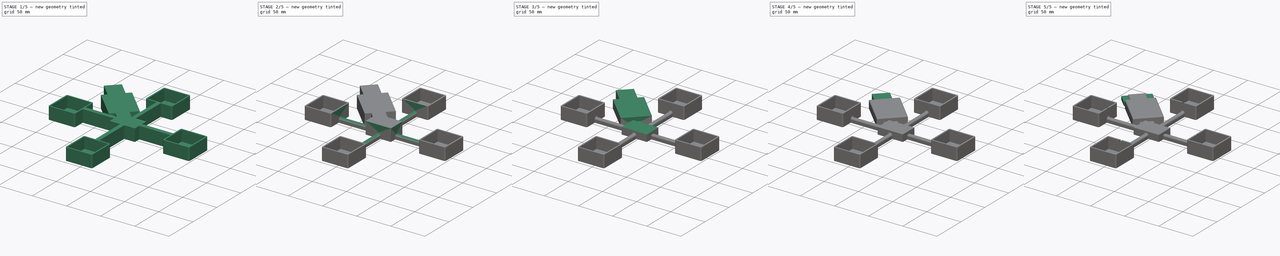
[diagram: build sequence overview — one tinted view per stage of 5, left to right]
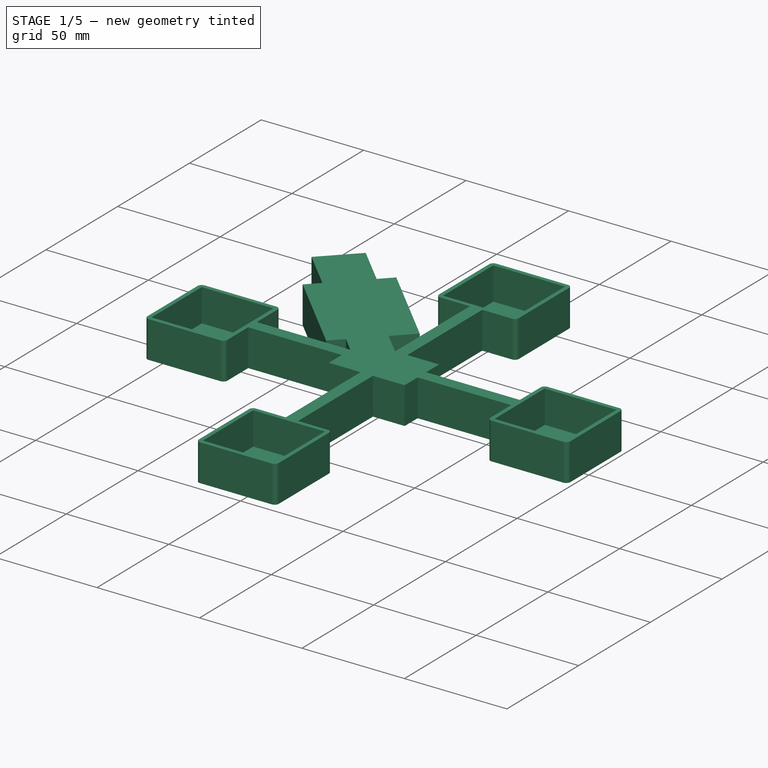
[diagram: stage 1 of 5 — iso view after this stage's code; geometry added in this stage tinted green]
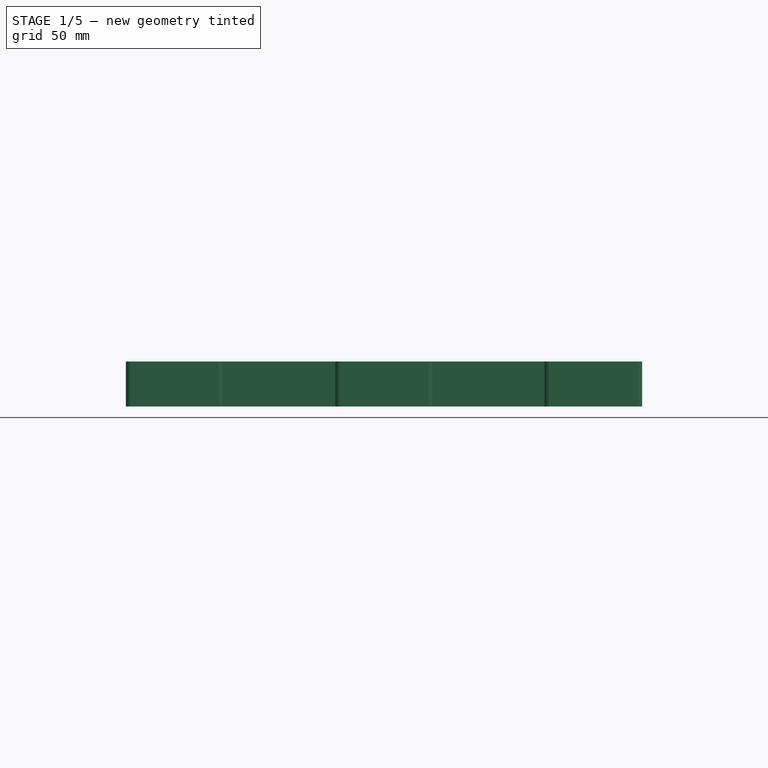
[diagram: stage 1 of 5 — front view after this stage's code; geometry added in this stage tinted green]
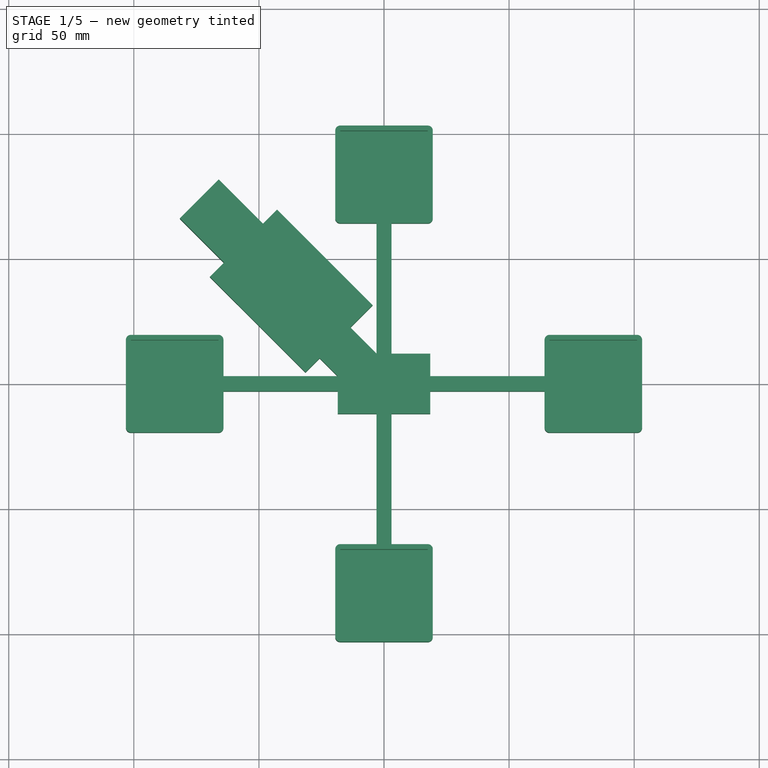
[diagram: stage 1 of 5 — top view after this stage's code; geometry added in this stage tinted green]
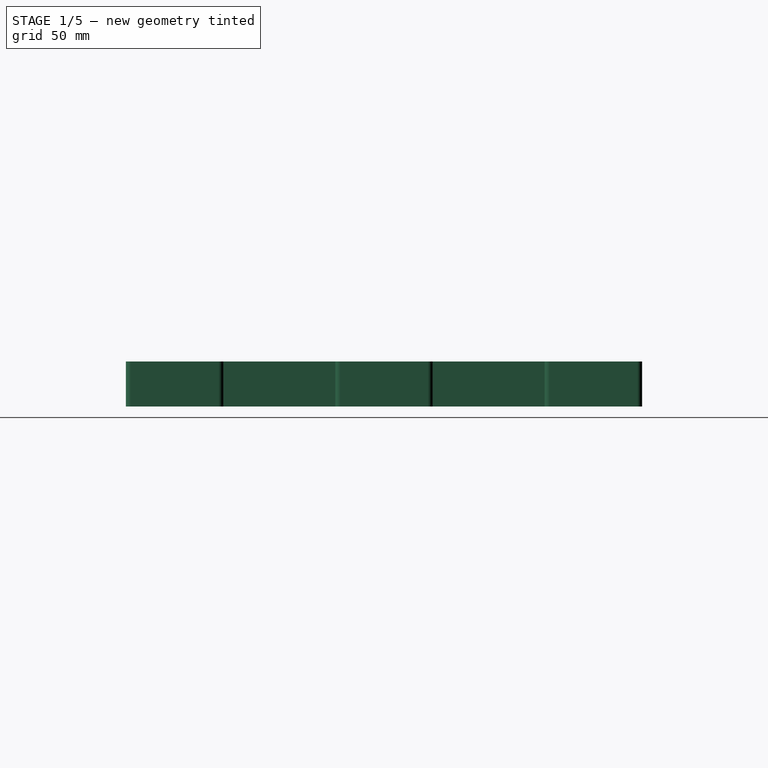
[diagram: stage 1 of 5 — right view after this stage's code; geometry added in this stage tinted green]
FCSTD DOCUMENT  (FreeCAD 1.0R39319 (Git))
Label: tap_tracker_base
License: All rights reserved
LicenseURL: https://en.wikipedia.org/wiki/All_rights_reserved
objects: Sketcher::SketchObject×17, PartDesign::Pocket×13, PartDesign::Fillet×11, PartDesign::Pad×3, PartDesign::Body×1
note: 116 computed .brp shape members not serialized (recipe doc carries the construction recipe); baked Part::Feature solids carry a one-line shape summary decoded from their .brp

FEATURE [Sketcher::SketchObject] Sketch
  ArcFitTolerance = 1e-06
  AttachmentSupport = -> [XY_Plane]
  FullyConstrained = true
  MakeInternals = false
  MapMode = 5
  sketch-geometry (47):
    g0: Circle [constr] CenterX=0 CenterY=0 CenterZ=0 NormalX=0 NormalY=0 NormalZ=1 AngleXU=0 Radius=105
    g1: LineSegment StartX=-103.173 StartY=19.5 StartZ=0 EndX=-103.173 EndY=-19.5 EndZ=0
    g2: LineSegment StartX=-103.173 StartY=-19.5 StartZ=0 EndX=-64.1734 EndY=-19.5 EndZ=0
    g3: LineSegment StartX=-64.1734 StartY=-19.5 StartZ=0 EndX=-64.1734 EndY=-3 EndZ=0
    g4: LineSegment StartX=-64.1734 StartY=19.5 StartZ=0 EndX=-103.173 EndY=19.5 EndZ=0
    g5: LineSegment StartX=64.1734 StartY=19.5 StartZ=0 EndX=64.1734 EndY=3 EndZ=0
    g6: LineSegment StartX=64.1734 StartY=-19.5 StartZ=0 EndX=103.173 EndY=-19.5 EndZ=0
    g7: LineSegment StartX=103.173 StartY=-19.5 StartZ=0 EndX=103.173 EndY=19.5 EndZ=0
    g8: LineSegment StartX=103.173 StartY=19.5 StartZ=0 EndX=64.1734 EndY=19.5 EndZ=0
    g9: LineSegment StartX=-19.5 StartY=64.1734 StartZ=0 EndX=-3 EndY=64.1734 EndZ=0
    g10: LineSegment StartX=19.5 StartY=64.1734 StartZ=0 EndX=19.5 EndY=103.173 EndZ=0
    g11: LineSegment StartX=19.5 StartY=103.173 StartZ=0 EndX=-19.5 EndY=103.173 EndZ=0
    g12: LineSegment StartX=-19.5 StartY=103.173 StartZ=0 EndX=-19.5 EndY=64.1734 EndZ=0
    g13: LineSegment StartX=-19.5 StartY=-64.1734 StartZ=0 EndX=-19.5 EndY=-103.173 EndZ=0
    g14: LineSegment StartX=-19.5 StartY=-103.173 StartZ=0 EndX=19.5 EndY=-103.173 EndZ=0
    g15: LineSegment StartX=19.5 StartY=-103.173 StartZ=0 EndX=19.5 EndY=-64.1734 EndZ=0
    g16: LineSegment StartX=19.5 StartY=-64.1734 StartZ=0 EndX=3 EndY=-64.1734 EndZ=0
    g17: LineSegment StartX=-18.5 StartY=-12 StartZ=0 EndX=-3 EndY=-12 EndZ=0
    g18: LineSegment StartX=18.5 StartY=-12 StartZ=0 EndX=18.5 EndY=-3 EndZ=0
    g19: LineSegment StartX=18.5 StartY=12 StartZ=0 EndX=3 EndY=12 EndZ=0
    g20: LineSegment StartX=-66.0595 StartY=81.6158 StartZ=0 EndX=-48.3818 EndY=63.9382 EndZ=0
    g21: LineSegment StartX=-63.9382 StartY=48.3818 StartZ=0 EndX=-81.6158 EndY=66.0595 EndZ=0
    g22: LineSegment StartX=-81.6158 StartY=66.0595 StartZ=0 EndX=-66.0595 EndY=81.6158 EndZ=0
    g23: LineSegment [constr] StartX=-105 StartY=0 StartZ=0 EndX=-5.4e-15 EndY=105 EndZ=0
    g24: LineSegment StartX=-64.1734 StartY=3 StartZ=0 EndX=-18.5 EndY=3 EndZ=0
    g25: LineSegment StartX=-64.1734 StartY=-3 StartZ=0 EndX=-18.5 EndY=-3 EndZ=0
    g26: LineSegment StartX=-18.5 StartY=-3 StartZ=0 EndX=-18.5 EndY=-12 EndZ=0
    g27: LineSegment StartX=-64.1734 StartY=3 StartZ=0 EndX=-64.1734 EndY=19.5 EndZ=0
    g28: LineSegment StartX=18.5 StartY=3 StartZ=0 EndX=64.1734 EndY=3 EndZ=0
    g29: LineSegment StartX=18.5 StartY=-3 StartZ=0 EndX=64.1734 EndY=-3 EndZ=0
    g30: LineSegment StartX=-3 StartY=64.1734 StartZ=0 EndX=-3 EndY=12 EndZ=0
    g31: LineSegment StartX=3 StartY=64.1734 StartZ=0 EndX=3 EndY=12 EndZ=0
    g32: LineSegment StartX=3 StartY=-12 StartZ=0 EndX=3 EndY=-64.1734 EndZ=0
    g33: LineSegment StartX=-3 StartY=-12 StartZ=0 EndX=-3 EndY=-64.1734 EndZ=0
    g34: LineSegment StartX=3 StartY=64.1734 StartZ=0 EndX=19.5 EndY=64.1734 EndZ=0
    g35: LineSegment StartX=3 StartY=-12 StartZ=0 EndX=18.5 EndY=-12 EndZ=0
    g36: LineSegment StartX=-3 StartY=-64.1734 StartZ=0 EndX=-19.5 EndY=-64.1734 EndZ=0
    g37: LineSegment StartX=18.5 StartY=3 StartZ=0 EndX=18.5 EndY=12 EndZ=0
    g38: LineSegment StartX=64.1734 StartY=-3 StartZ=0 EndX=64.1734 EndY=-19.5 EndZ=0
    g39: LineSegment StartX=-48.3818 StartY=63.9382 StartZ=0 EndX=-42.725 EndY=69.595 EndZ=0
    g40: LineSegment StartX=-42.725 StartY=69.595 StartZ=0 EndX=-4.5412 EndY=31.4113 EndZ=0
    g41: LineSegment StartX=-4.5412 StartY=31.4113 StartZ=0 EndX=-13.4762 EndY=22.4762 EndZ=0
    g42: LineSegment StartX=-31.4113 StartY=4.5412 StartZ=0 EndX=-69.595 EndY=42.725 EndZ=0
    g43: LineSegment StartX=-69.595 StartY=42.725 StartZ=0 EndX=-63.9382 EndY=48.3818 EndZ=0
    g44: LineSegment StartX=-18.5 StartY=3 StartZ=0 EndX=-25.7262 EndY=10.2262 EndZ=0
    g45: LineSegment StartX=-3 StartY=12 StartZ=0 EndX=-13.4762 EndY=22.4762 EndZ=0
    g46: LineSegment StartX=-25.7262 StartY=10.2262 StartZ=0 EndX=-31.4113 EndY=4.5412 EndZ=0
  constraints (142):
    c: Diameter(g0) = 210
    c: Coincident(g1,g2)
    c: Coincident(g2,g3)
    c: Coincident(g27,g4)
    c: Coincident(g4,g1)
    c: Vertical(g1)
    c: Horizontal(g2)
    c: Horizontal(g4)
    c: DistanceX(g4,g4) = 39
    c: DistanceY(g1,g1) = 39
    c: PointOnObject(g1,g0)
    c: Coincident(g0,g-1)
    c: Symmetric(g2,g27,g-1)
    c: Coincident(g38,g6)
    c: Coincident(g6,g7)
    c: Coincident(g7,g8)
    c: Coincident(g8,g5)
    c: Vertical(g5)
    c: Vertical(g7)
    c: Horizontal(g6)
    c: Horizontal(g8)
    c: DistanceY(g38,g5) = 39
    c: DistanceX(g6,g6) = 39
    c: PointOnObject(g7,g0)
    c: PointOnObject(g6,g0)
    c: Coincident(g34,g10)
    c: Coincident(g10,g11)
    c: Coincident(g11,g12)
    c: Coincident(g12,g9)
    c: Horizontal(g9)
    c: Horizontal(g11)
    c: Vertical(g10)
    c: Vertical(g12)
    c: DistanceY(g10,g10) = 39
    c: DistanceX(g9,g34) = 39
    c: PointOnObject(g11,g0)
    c: PointOnObject(g10,g0)
    c: Coincident(g13,g14)
    c: Coincident(g14,g15)
    c: Coincident(g15,g16)
    c: Coincident(g36,g13)
    c: Vertical(g13)
    c: Vertical(g15)
    c: Horizontal(g14)
    c: Horizontal(g16)
    c: DistanceX(g36,g16) = 39
    c: DistanceY(g15,g15) = 39
    c: PointOnObject(g13,g0)
    c: PointOnObject(g14,g0)
    c: Coincident(g26,g17)
    c: Coincident(g35,g18)
    c: Coincident(g37,g19)
    c: Vertical(g18)
    c: Horizontal(g19)
    c: Symmetric(g35,g26,g-2)
    c: PointOnObject(g20,g0)
    c: PointOnObject(g21,g0)
    c: Coincident(g21,g22)
    c: Coincident(g22,g20)
    c: Distance(g21,g21) = 25
    c: Distance(g20,g20) = 25
    c: Distance(g20,g21) = 22
    c: PointOnObject(g23,g0)
    c: PointOnObject(g23,g0)
    c: PointOnObject(g23,g-2)
    c: PointOnObject(g23,g-1)
    c: PointOnObject(g24,g27)
    c: Horizontal(g25)
    c: Parallel(g25,g24)
    c: DistanceY(g25,g24) = 6
    c: Symmetric(g24,g25,g-1)
    c: Coincident(g3,g25)
    c: PointOnObject(g27,g24)
    c: PointOnObject(g28,g37)
    c: Horizontal(g28)
    c: PointOnObject(g29,g38)
    c: Horizontal(g29)
    c: Vertical(g30)
    c: Vertical(g31)
    c: PointOnObject(g32,g35)
    c: Vertical(g32)
    c: PointOnObject(g33,g36)
    c: Vertical(g33)
    c: Distance(g31,g30) = 6
    c: Symmetric(g30,g31,g-2)
    c: Coincident(g9,g30)
    c: PointOnObject(g34,g31)
    c: Coincident(g19,g31)
    c: Distance(g32,g33) = 6
    c: Symmetric(g32,g33,g-2)
    c: PointOnObject(g17,g33)
    c: PointOnObject(g35,g32)
    c: Coincident(g16,g32)
    c: PointOnObject(g36,g33)
    c: Distance(g29,g28) = 6
    c: Symmetric(g28,g29,g-1)
    c: PointOnObject(g18,g29)
    c: PointOnObject(g37,g28)
    c: Coincident(g5,g28)
    c: PointOnObject(g38,g29)
    c: Parallel(g27,g1)
    c: Parallel(g3,g1)
    c: Perpendicular(g26,g25)
    c: Perpendicular(g26,g17)
    c: Perpendicular(g37,g19)
    c: Perpendicular(g18,g35)
    c: Equal(g19,g35)
    c: Perpendicular(g36,g13)
    c: Perpendicular(g31,g34)
    c: Perpendicular(g6,g38)
    c: Equal(g6,g8)
    c: Equal(g15,g13)
    c: Equal(g10,g12)
    c: Distance(g18,g26) = 37
    c: Coincident(g25,g26)
    c: Distance(g19,g35) = 24
    c: Equal(g31,g30)
    c: Parallel(g22,g23)
    c: Perpendicular(g22,g21)
    c: Perpendicular(g22,g20)
    c: Equal(g37,g18)
    c: Coincident(g20,g39)
    c: Coincident(g39,g40)
    c: Coincident(g40,g41)
    c: Coincident(g46,g42)
    c: Coincident(g42,g43)
    c: Coincident(g43,g21)
    c: Perpendicular(g42,g43)
    c: Perpendicular(g43,g21)
    c: Perpendicular(g20,g39)
    c: Perpendicular(g40,g39)
    c: Perpendicular(g42,g41)
    c: Distance(g41,g46) = 38
    c: Distance(g42,g42) = 54
    c: Equal(g39,g43)
    c: Coincident(g44,g24)
    c: PointOnObject(g44,g46)
    c: Coincident(g45,g30)
    c: Perpendicular(g41,g45) = 4.71239
    c: Perpendicular(g46,g44) = 4.71239
    c: Perpendicular(g46,g42)
    c: Distance(g39,g41) = 54
FEATURE [PartDesign::Pad] Pad
  Direction = (0,0,1)
  Length = 18
  Length2 = 10
  Profile = -> Sketch
  ReferenceAxis = -> Sketch [N_Axis]
  Refine = true
  Suppressed = false
  Type = 0
FEATURE [Sketcher::SketchObject] Sketch001
  ArcFitTolerance = 1e-06
  AttachmentSupport = -> [Pad]
  ExternalGeometry = -> [Pad]
  FullyConstrained = true
  MakeInternals = false
  MapMode = 5
  Placement = pos=(0,0,18) rot=(0,0,1;0rad)
  sketch-geometry (16):
    g0: LineSegment StartX=-101.173 StartY=17.5 StartZ=0 EndX=-101.173 EndY=-17.5 EndZ=0
    g1: LineSegment StartX=-101.173 StartY=-17.5 StartZ=0 EndX=-66.1734 EndY=-17.5 EndZ=0
    g2: LineSegment StartX=-66.1734 StartY=-17.5 StartZ=0 EndX=-66.1734 EndY=17.5 EndZ=0
    g3: LineSegment StartX=-66.1734 StartY=17.5 StartZ=0 EndX=-101.173 EndY=17.5 EndZ=0
    g4: LineSegment StartX=-17.5 StartY=101.173 StartZ=0 EndX=-17.5 EndY=66.1734 EndZ=0
    g5: LineSegment StartX=-17.5 StartY=66.1734 StartZ=0 EndX=17.5 EndY=66.1734 EndZ=0
    g6: LineSegment StartX=17.5 StartY=66.1734 StartZ=0 EndX=17.5 EndY=101.173 EndZ=0
    g7: LineSegment StartX=17.5 StartY=101.173 StartZ=0 EndX=-17.5 EndY=101.173 EndZ=0
    g8: LineSegment StartX=66.1734 StartY=17.5 StartZ=0 EndX=66.1734 EndY=-17.5 EndZ=0
    g9: LineSegment StartX=66.1734 StartY=-17.5 StartZ=0 EndX=101.173 EndY=-17.5 EndZ=0
    g10: LineSegment StartX=101.173 StartY=-17.5 StartZ=0 EndX=101.173 EndY=17.5 EndZ=0
    g11: LineSegment StartX=101.173 StartY=17.5 StartZ=0 EndX=66.1734 EndY=17.5 EndZ=0
    g12: LineSegment StartX=-17.5 StartY=-66.1734 StartZ=0 EndX=-17.5 EndY=-101.173 EndZ=0
    g13: LineSegment StartX=-17.5 StartY=-101.173 StartZ=0 EndX=17.5 EndY=-101.173 EndZ=0
    g14: LineSegment StartX=17.5 StartY=-101.173 StartZ=0 EndX=17.5 EndY=-66.1734 EndZ=0
    g15: LineSegment StartX=17.5 StartY=-66.1734 StartZ=0 EndX=-17.5 EndY=-66.1734 EndZ=0
  constraints (48):
    c: Coincident(g0,g1)
    c: Coincident(g1,g2)
    c: Coincident(g2,g3)
    c: Coincident(g3,g0)
    c: Vertical(g0)
    c: Vertical(g2)
    c: Horizontal(g1)
    c: Horizontal(g3)
    c: Coincident(g4,g5)
    c: Coincident(g5,g6)
    c: Coincident(g6,g7)
    c: Coincident(g7,g4)
    c: Vertical(g4)
    c: Vertical(g6)
    c: Horizontal(g5)
    c: Horizontal(g7)
    c: Coincident(g8,g9)
    c: Coincident(g9,g10)
    c: Coincident(g10,g11)
    c: Coincident(g11,g8)
    c: Vertical(g8)
    c: Vertical(g10)
    c: Horizontal(g9)
    c: Horizontal(g11)
    c: Coincident(g12,g13)
    c: Coincident(g13,g14)
    c: Coincident(g14,g15)
    c: Coincident(g15,g12)
    c: Vertical(g12)
    c: Vertical(g14)
    c: Horizontal(g13)
    c: Horizontal(g15)
    c: Distance(g-3,g0) = 2
    c: Distance(g1,g-4) = 2
    c: Distance(g-6,g3) = 2
    c: Distance(g-5,g2) = 2
    c: Distance(g-7,g5) = 2
    c: Distance(g-8,g4) = 2
    c: Distance(g-9,g7) = 2
    c: Distance(g-10,g6) = 2
    c: Distance(g-12,g11) = 2
    c: Distance(g-13,g10) = 2
    c: Distance(g-14,g9) = 2
    c: Distance(g-11,g8) = 2
    c: Distance(g14,g-16) = 2
    c: Distance(g-15,g15) = 2
    c: Distance(g-18,g12) = 2
    c: Distance(g-17,g13) = 2
FEATURE [PartDesign::Pocket] Pocket
  BaseFeature = -> Pad
  Direction = (0,0,-1)
  Length = 16
  Length2 = 5
  Profile = -> Sketch001
  ReferenceAxis = -> Sketch001 [N_Axis]
  Refine = true
  Suppressed = false
  Type = 0
FEATURE [PartDesign::Fillet] Fillet
  Base = -> Pocket [Edge121,Edge120,Edge122,Edge128,Edge129,Edge130]
  BaseFeature = -> Pocket
  Radius = 2
  Refine = true
  SupportTransform = false
  Suppressed = false
  UseAllEdges = false
FEATURE [PartDesign::Fillet] Fillet001
  Base = -> Fillet [Edge81,Edge77,Edge89,Edge149,Edge143,Edge147]
  BaseFeature = -> Fillet
  Radius = 2
  Refine = true
  SupportTransform = false
  Suppressed = false
  UseAllEdges = false
FEATURE [PartDesign::Fillet] Fillet002
  Base = -> Fillet001 [Edge79,Edge151,Edge149,Edge73]
  BaseFeature = -> Fillet001
  Radius = 2
  Refine = true
  SupportTransform = false
  Suppressed = false
  UseAllEdges = false
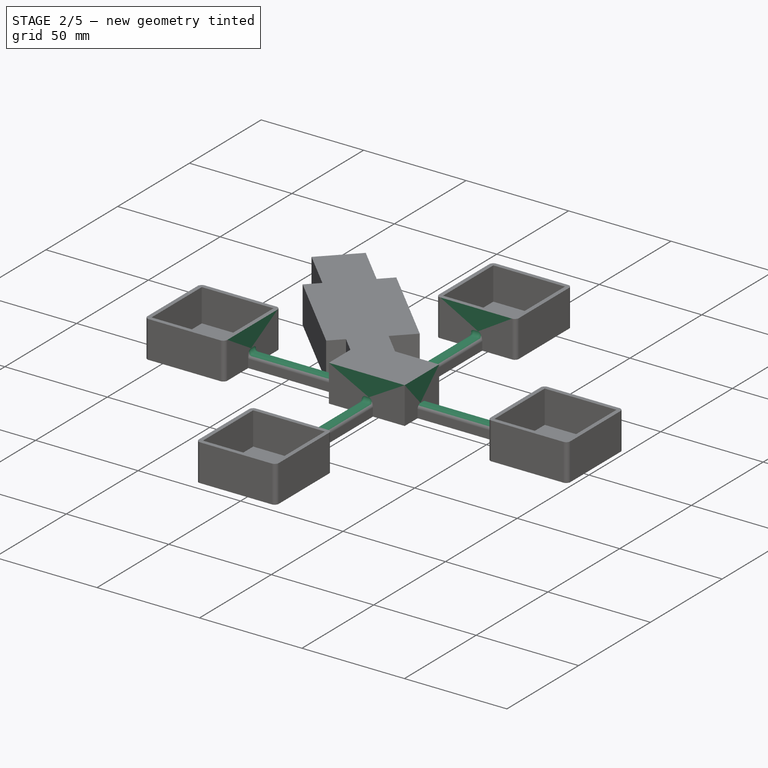
[diagram: stage 2 of 5 — iso view after this stage's code; geometry added in this stage tinted green]
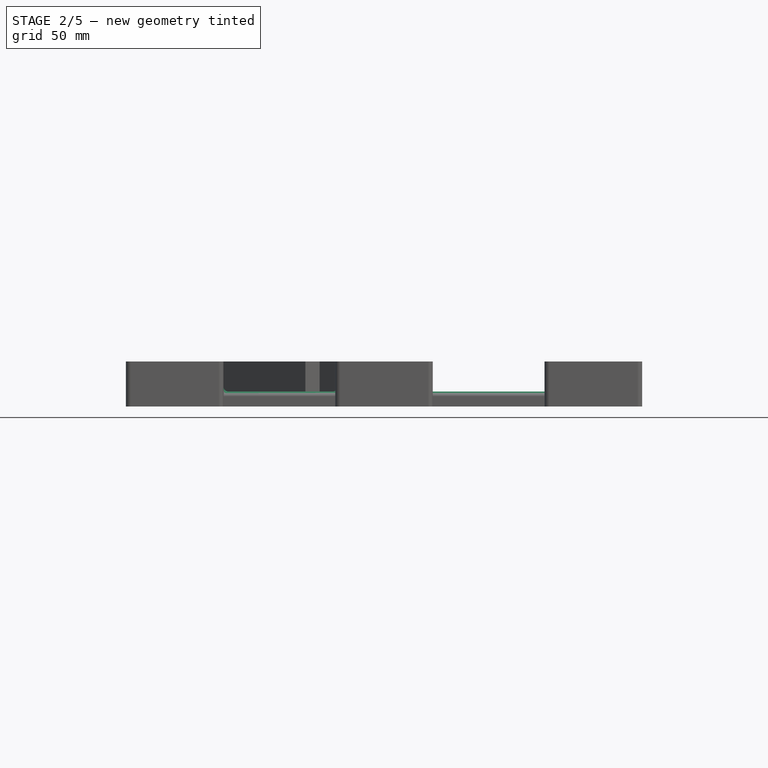
[diagram: stage 2 of 5 — front view after this stage's code; geometry added in this stage tinted green]
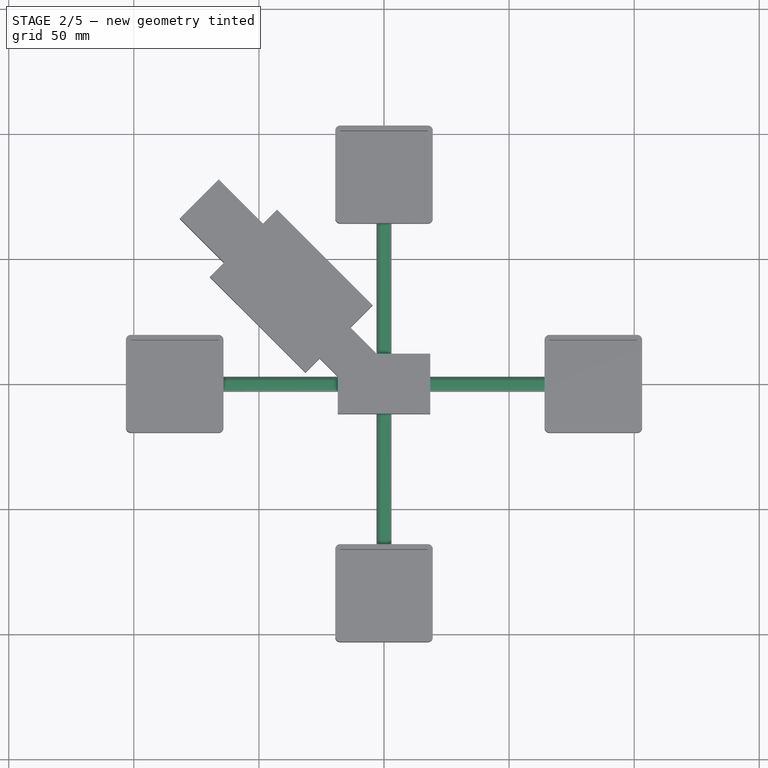
[diagram: stage 2 of 5 — top view after this stage's code; geometry added in this stage tinted green]
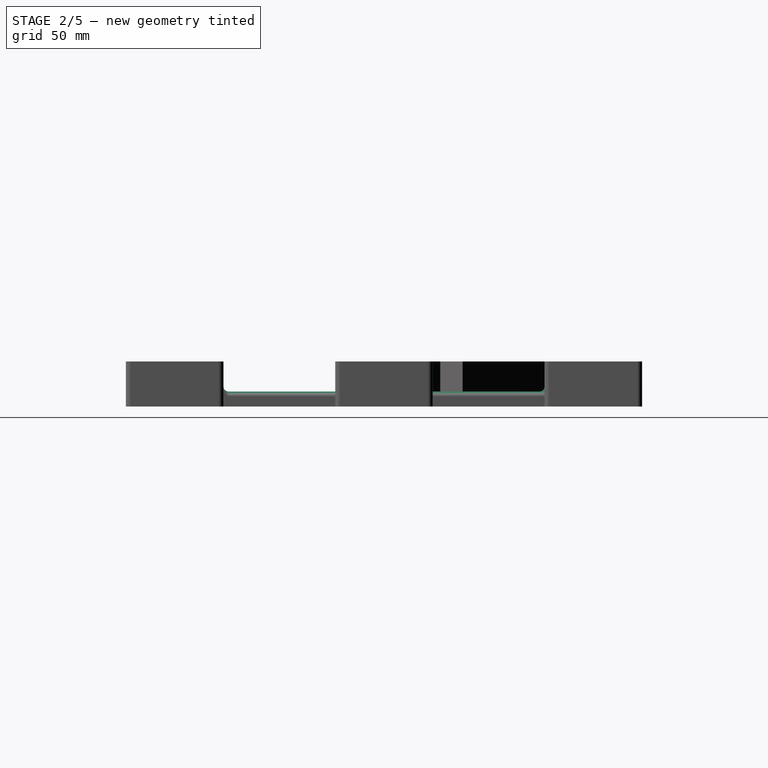
[diagram: stage 2 of 5 — right view after this stage's code; geometry added in this stage tinted green]
FEATURE [Sketcher::SketchObject] Sketch002
  ArcFitTolerance = 1e-06
  AttachmentSupport = -> [Fillet002]
  ExternalGeometry = -> [Fillet002]
  FullyConstrained = true
  MakeInternals = false
  MapMode = 5
  Placement = pos=(0,0,18) rot=(0,0,1;0rad)
  sketch-geometry (16):
    g0: LineSegment StartX=-3 StartY=-64.1734 StartZ=0 EndX=3 EndY=-64.1734 EndZ=0
    g1: LineSegment StartX=3 StartY=-64.1734 StartZ=0 EndX=3 EndY=-12 EndZ=0
    g2: LineSegment StartX=3 StartY=-12 StartZ=0 EndX=-3 EndY=-12 EndZ=0
    g3: LineSegment StartX=-3 StartY=-12 StartZ=0 EndX=-3 EndY=-64.1734 EndZ=0
    g4: LineSegment StartX=-64.1734 StartY=3 StartZ=0 EndX=-64.1734 EndY=-3 EndZ=0
    g5: LineSegment StartX=-64.1734 StartY=-3 StartZ=0 EndX=-18.5 EndY=-3 EndZ=0
    g6: LineSegment StartX=-18.5 StartY=-3 StartZ=0 EndX=-18.5 EndY=3 EndZ=0
    g7: LineSegment StartX=-18.5 StartY=3 StartZ=0 EndX=-64.1734 EndY=3 EndZ=0
    g8: LineSegment StartX=18.5 StartY=3 StartZ=0 EndX=18.5 EndY=-3 EndZ=0
    g9: LineSegment StartX=18.5 StartY=-3 StartZ=0 EndX=64.1734 EndY=-3 EndZ=0
    g10: LineSegment StartX=64.1734 StartY=-3 StartZ=0 EndX=64.1734 EndY=3 EndZ=0
    g11: LineSegment StartX=64.1734 StartY=3 StartZ=0 EndX=18.5 EndY=3 EndZ=0
    g12: LineSegment StartX=3 StartY=12 StartZ=0 EndX=3 EndY=64.1734 EndZ=0
    g13: LineSegment StartX=3 StartY=64.1734 StartZ=0 EndX=-3 EndY=64.1734 EndZ=0
    g14: LineSegment StartX=-3 StartY=64.1734 StartZ=0 EndX=-3 EndY=12 EndZ=0
    g15: LineSegment StartX=-3 StartY=12 StartZ=0 EndX=3 EndY=12 EndZ=0
  constraints (40):
    c: Coincident(g0,g1)
    c: Coincident(g1,g2)
    c: Coincident(g2,g3)
    c: Coincident(g3,g0)
    c: Horizontal(g0)
    c: Horizontal(g2)
    c: Vertical(g1)
    c: Vertical(g3)
    c: Coincident(g0,g-16)
    c: Coincident(g1,g-15)
    c: Coincident(g4,g5)
    c: Coincident(g5,g6)
    c: Coincident(g6,g7)
    c: Coincident(g7,g4)
    c: Vertical(g4)
    c: Vertical(g6)
    c: Horizontal(g5)
    c: Horizontal(g7)
    c: Coincident(g4,g-9)
    c: Coincident(g5,g-10)
    c: Coincident(g8,g9)
    c: Coincident(g9,g10)
    c: Coincident(g10,g11)
    c: Coincident(g11,g8)
    c: Vertical(g8)
    c: Vertical(g10)
    c: Horizontal(g9)
    c: Horizontal(g11)
    c: Coincident(g8,g-13)
    c: Coincident(g9,g-14)
    c: Coincident(g12,g13)
    c: Coincident(g13,g14)
    c: Coincident(g14,g15)
    c: Coincident(g15,g12)
    c: Vertical(g12)
    c: Vertical(g14)
    c: Horizontal(g13)
    c: Horizontal(g15)
    c: Coincident(g12,g-12)
    c: Coincident(g13,g-11)
FEATURE [PartDesign::Pocket] Pocket001
  BaseFeature = -> Fillet002
  Direction = (0,0,-1)
  Length = 12
  Length2 = 5
  Profile = -> Sketch002
  ReferenceAxis = -> Sketch002 [N_Axis]
  Refine = true
  Suppressed = false
  Type = 0
FEATURE [PartDesign::Fillet] Fillet003
  Base = -> Pocket001 [Face52]
  BaseFeature = -> Pocket001
  Radius = 2
  Refine = true
  SupportTransform = false
  Suppressed = false
  UseAllEdges = false
FEATURE [PartDesign::Fillet] Fillet004
  Base = -> Fillet003 [Face74]
  BaseFeature = -> Fillet003
  Radius = 2
  Refine = true
  SupportTransform = false
  Suppressed = false
  UseAllEdges = false
FEATURE [PartDesign::Fillet] Fillet005
  Base = -> Fillet004 [Face72]
  BaseFeature = -> Fillet004
  Radius = 2
  Refine = true
  SupportTransform = false
  Suppressed = false
  UseAllEdges = false
FEATURE [PartDesign::Fillet] Fillet006
  Base = -> Fillet005 [Edge182]
  BaseFeature = -> Fillet005
  Radius = 2
  Refine = true
  SupportTransform = false
  Suppressed = false
  UseAllEdges = false
FEATURE [PartDesign::Fillet] Fillet007
  Base = -> Fillet006 [Edge73]
  BaseFeature = -> Fillet006
  Radius = 2
  Refine = true
  SupportTransform = false
  Suppressed = false
  UseAllEdges = false
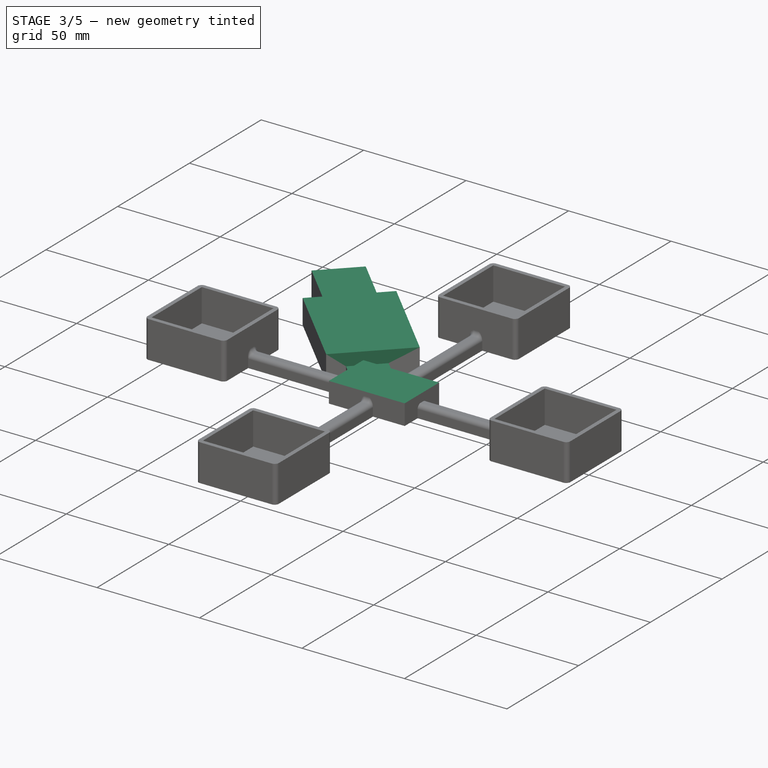
[diagram: stage 3 of 5 — iso view after this stage's code; geometry added in this stage tinted green]
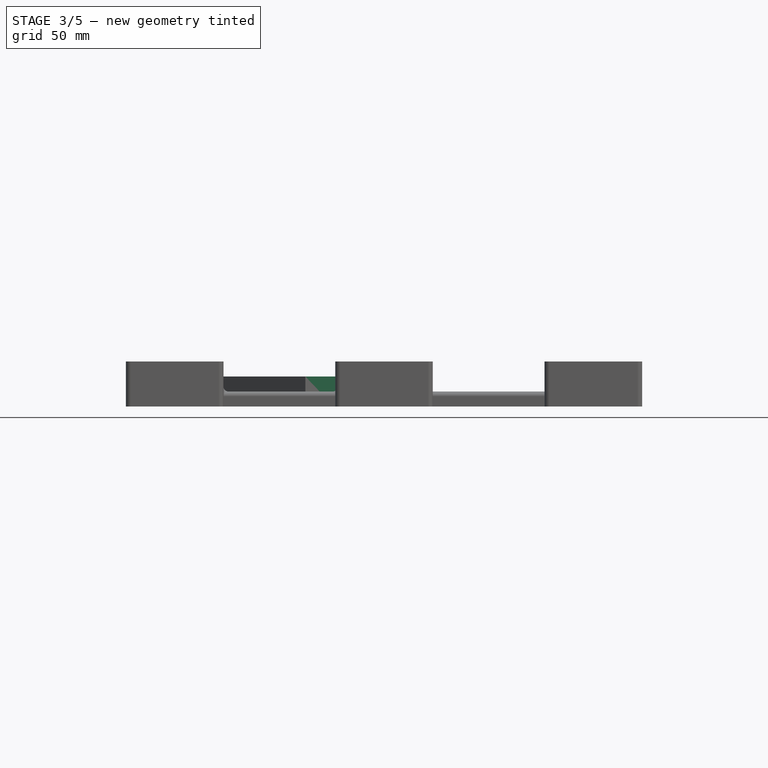
[diagram: stage 3 of 5 — front view after this stage's code; geometry added in this stage tinted green]
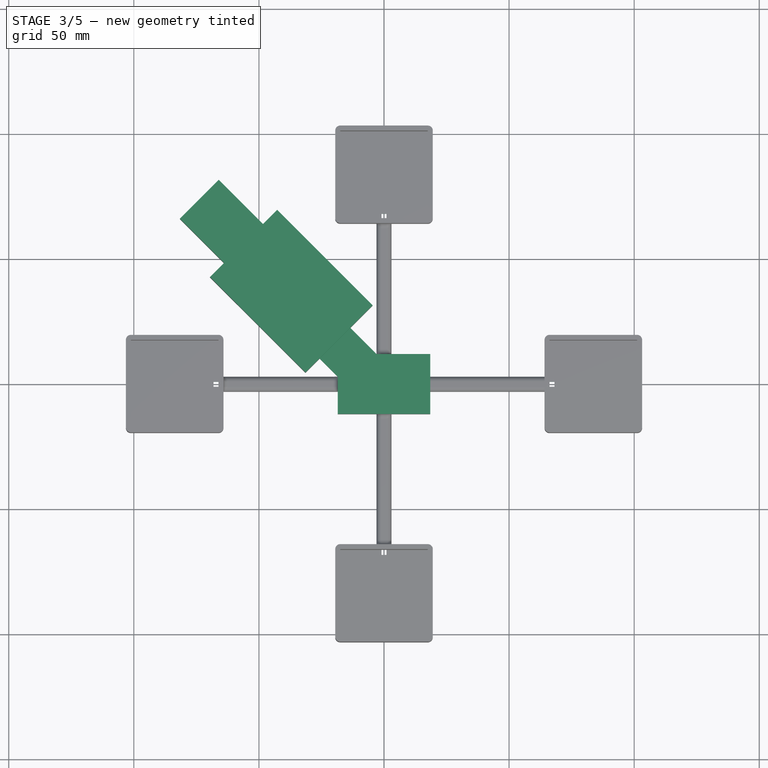
[diagram: stage 3 of 5 — top view after this stage's code; geometry added in this stage tinted green]
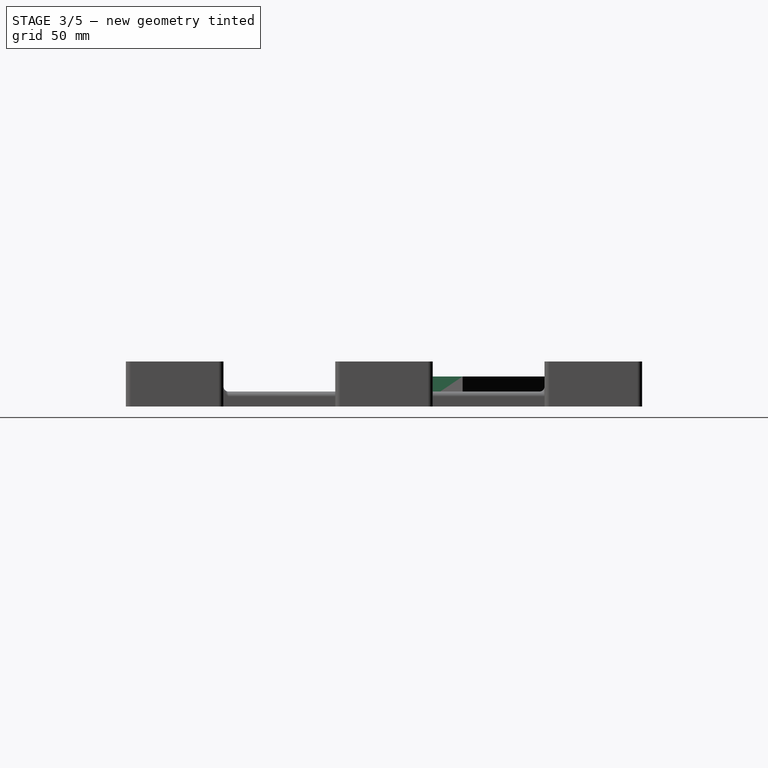
[diagram: stage 3 of 5 — right view after this stage's code; geometry added in this stage tinted green]
FEATURE [Sketcher::SketchObject] Sketch003
  ArcFitTolerance = 1e-06
  AttachmentSupport = -> [Fillet007]
  FullyConstrained = true
  MakeInternals = false
  MapMode = 5
  Placement = pos=(0,0,0) rot=(1,0,0;3.14159rad)
FEATURE [Sketcher::SketchObject] Sketch004
  ArcFitTolerance = 1e-06
  AttachmentSupport = -> [Fillet007]
  ExternalGeometry = -> [Fillet007]
  FullyConstrained = true
  MakeInternals = false
  MapMode = 5
  Placement = pos=(0,0,0) rot=(1,0,0;3.14159rad)
  sketch-geometry (8):
    g0: LineSegment StartX=-1 StartY=68.1734 StartZ=0 EndX=-1 EndY=-68.1734 EndZ=0
    g1: LineSegment StartX=-1 StartY=-68.1734 StartZ=0 EndX=1 EndY=-68.1734 EndZ=0
    g2: LineSegment StartX=1 StartY=-68.1734 StartZ=0 EndX=1 EndY=68.1734 EndZ=0
    g3: LineSegment StartX=1 StartY=68.1734 StartZ=0 EndX=-1 EndY=68.1734 EndZ=0
    g4: LineSegment StartX=-68.1734 StartY=1 StartZ=0 EndX=-68.1734 EndY=-1 EndZ=0
    g5: LineSegment StartX=-68.1734 StartY=-1 StartZ=0 EndX=68.1734 EndY=-1 EndZ=0
    g6: LineSegment StartX=68.1734 StartY=-1 StartZ=0 EndX=68.1734 EndY=1 EndZ=0
    g7: LineSegment StartX=68.1734 StartY=1 StartZ=0 EndX=-68.1734 EndY=1 EndZ=0
  constraints (22):
    c: Coincident(g0,g1)
    c: Coincident(g1,g2)
    c: Coincident(g2,g3)
    c: Coincident(g3,g0)
    c: Vertical(g0)
    c: Vertical(g2)
    c: Horizontal(g1)
    c: Distance(g3,g3) = 2
    c: Symmetric(g0,g2,g-2)
    c: Distance(g-10,g3) = 4
    c: Distance(g-9,g1) = 4
    c: Coincident(g4,g5)
    c: Coincident(g5,g6)
    c: Coincident(g6,g7)
    c: Coincident(g7,g4)
    c: Vertical(g6)
    c: Horizontal(g5)
    c: Horizontal(g7)
    c: Distance(g4,g4) = 2
    c: Symmetric(g4,g4,g-1)
    c: Distance(g-7,g4) = 4
    c: Distance(g6,g-8) = 4
FEATURE [PartDesign::Pocket] Pocket002
  BaseFeature = -> Fillet007
  Direction = (0,0,1)
  Length = 2
  Length2 = 5
  Profile = -> Sketch004
  ReferenceAxis = -> Sketch004 [N_Axis]
  Refine = true
  Suppressed = false
  Type = 0
FEATURE [Sketcher::SketchObject] Sketch005
  ArcFitTolerance = 1e-06
  AttachmentSupport = -> [Pocket002]
  FullyConstrained = true
  MakeInternals = false
  MapMode = 5
  Placement = pos=(0,0,0) rot=(1,0,0;3.14159rad)
  sketch-geometry (4):
    g0: LineSegment StartX=-17 StartY=10.5 StartZ=0 EndX=-17 EndY=-10.5 EndZ=0
    g1: LineSegment StartX=-17 StartY=-10.5 StartZ=0 EndX=17 EndY=-10.5 EndZ=0
    g2: LineSegment StartX=17 StartY=-10.5 StartZ=0 EndX=17 EndY=10.5 EndZ=0
    g3: LineSegment StartX=17 StartY=10.5 StartZ=0 EndX=-17 EndY=10.5 EndZ=0
  constraints (10):
    c: Coincident(g0,g1)
    c: Coincident(g1,g2)
    c: Coincident(g2,g3)
    c: Coincident(g3,g0)
    c: Vertical(g0)
    c: Horizontal(g3)
    c: Distance(g3,g3) = 34
    c: Distance(g2,g2) = 21
    c: Symmetric(g2,g1,g-1)
    c: Symmetric(g0,g1,g-2)
FEATURE [PartDesign::Pocket] Pocket003
  BaseFeature = -> Pocket002
  Direction = (0,0,1)
  Length = 8
  Length2 = 5
  Profile = -> Sketch005
  ReferenceAxis = -> Sketch005 [N_Axis]
  Refine = true
  Suppressed = false
  Type = 0
FEATURE [Sketcher::SketchObject] Sketch006
  ArcFitTolerance = 1e-06
  AttachmentSupport = -> [Pocket003]
  ExternalGeometry = -> [Pocket003]
  FullyConstrained = true
  MakeInternals = false
  MapMode = 5
  Placement = pos=(0,0,18) rot=(0,0,1;0rad)
  sketch-geometry (4):
    g0: LineSegment StartX=18.5 StartY=12 StartZ=0 EndX=-18.5 EndY=12 EndZ=0
    g1: LineSegment StartX=-18.5 StartY=12 StartZ=0 EndX=-18.5 EndY=-12 EndZ=0
    g2: LineSegment StartX=-18.5 StartY=-12 StartZ=0 EndX=18.5 EndY=-12 EndZ=0
    g3: LineSegment StartX=18.5 StartY=-12 StartZ=0 EndX=18.5 EndY=12 EndZ=0
  constraints (10):
    c: Coincident(g0,g1)
    c: Coincident(g1,g2)
    c: Coincident(g2,g3)
    c: Coincident(g3,g0)
    c: Horizontal(g0)
    c: Horizontal(g2)
    c: Vertical(g1)
    c: Vertical(g3)
    c: Coincident(g0,g-3)
    c: Coincident(g1,g-5)
FEATURE [PartDesign::Pocket] Pocket004
  BaseFeature = -> Pocket003
  Direction = (0,0,-1)
  Length = 8
  Length2 = 5
  Profile = -> Sketch006
  ReferenceAxis = -> Sketch006 [N_Axis]
  Refine = true
  Suppressed = false
  Type = 0
FEATURE [Sketcher::SketchObject] Sketch007
  ArcFitTolerance = 1e-06
  AttachmentSupport = -> [Pocket004]
  ExternalGeometry = -> [Pocket004]
  FullyConstrained = true
  MakeInternals = false
  MapMode = 5
  Placement = pos=(0,0,18) rot=(0,0,1;0rad)
  sketch-geometry (13):
    g0: LineSegment StartX=-69.595 StartY=42.725 StartZ=0 EndX=-63.9382 EndY=48.3818 EndZ=0
    g1: LineSegment StartX=-63.9382 StartY=48.3818 StartZ=0 EndX=-81.6158 EndY=66.0595 EndZ=0
    g2: LineSegment StartX=-81.6158 StartY=66.0595 StartZ=0 EndX=-66.0595 EndY=81.6158 EndZ=0
    g3: LineSegment StartX=-66.0595 StartY=81.6158 StartZ=0 EndX=-48.3818 EndY=63.9382 EndZ=0
    g4: LineSegment StartX=-48.3818 StartY=63.9382 StartZ=0 EndX=-42.725 EndY=69.595 EndZ=0
    g5: LineSegment StartX=-42.725 StartY=69.595 StartZ=0 EndX=-4.5412 EndY=31.4113 EndZ=0
    g6: LineSegment StartX=-4.5412 StartY=31.4113 StartZ=0 EndX=-13.4762 EndY=22.4762 EndZ=0
    g7: LineSegment StartX=-13.4762 StartY=22.4762 StartZ=0 EndX=-3 EndY=12 EndZ=0
    g8: LineSegment StartX=-3 StartY=12 StartZ=0 EndX=-18.5 EndY=12 EndZ=0
    g9: LineSegment StartX=-18.5 StartY=12 StartZ=0 EndX=-18.5 EndY=3 EndZ=0
    g10: LineSegment StartX=-18.5 StartY=3 StartZ=0 EndX=-25.7262 EndY=10.2262 EndZ=0
    g11: LineSegment StartX=-25.7262 StartY=10.2262 StartZ=0 EndX=-31.4113 EndY=4.5412 EndZ=0
    g12: LineSegment StartX=-31.4113 StartY=4.5412 StartZ=0 EndX=-69.595 EndY=42.725 EndZ=0
  constraints (26):
    c: Coincident(g-14,g0)
    c: Coincident(g0,g-15)
    c: Coincident(g0,g1)
    c: Coincident(g1,g-15)
    c: Coincident(g1,g2)
    c: Coincident(g2,g-4)
    c: Coincident(g2,g3)
    c: Coincident(g3,g-5)
    c: Coincident(g3,g4)
    c: Coincident(g4,g-6)
    c: Coincident(g4,g5)
    c: Coincident(g5,g-7)
    c: Coincident(g5,g6)
    c: Coincident(g6,g-8)
    c: Coincident(g6,g7)
    c: Coincident(g7,g-9)
    c: Coincident(g7,g8)
    c: Coincident(g8,g-10)
    c: Coincident(g8,g9)
    c: Coincident(g9,g-11)
    c: Coincident(g9,g10)
    c: Coincident(g10,g-12)
    c: Coincident(g10,g11)
    c: Coincident(g11,g-13)
    c: Coincident(g11,g12)
    c: Coincident(g12,g0)
FEATURE [PartDesign::Pocket] Pocket005
  BaseFeature = -> Pocket004
  Direction = (0,0,-1)
  Length = 6
  Length2 = 5
  Profile = -> Sketch007
  ReferenceAxis = -> Sketch007 [N_Axis]
  Refine = true
  Suppressed = false
  Type = 0
FEATURE [Sketcher::SketchObject] Sketch008
  ArcFitTolerance = 1e-06
  AttachmentSupport = -> [Pocket005]
  ExternalGeometry = -> [Pocket005]
  FullyConstrained = true
  MakeInternals = false
  MapMode = 5
  Placement = pos=(0,0,12) rot=(0,0,1;0rad)
  sketch-geometry (5):
    g0: LineSegment StartX=-25.7262 StartY=10.2262 StartZ=0 EndX=-13.4762 EndY=22.4762 EndZ=0
    g1: LineSegment StartX=-13.4762 StartY=22.4762 StartZ=0 EndX=-3 EndY=12 EndZ=0
    g2: LineSegment StartX=-3 StartY=12 StartZ=0 EndX=-18.5 EndY=12 EndZ=0
    g3: LineSegment StartX=-18.5 StartY=12 StartZ=0 EndX=-18.5 EndY=3 EndZ=0
    g4: LineSegment StartX=-18.5 StartY=3 StartZ=0 EndX=-25.7262 EndY=10.2262 EndZ=0
  constraints (10):
    c: Coincident(g-3,g0)
    c: Coincident(g0,g-5)
    c: Coincident(g0,g1)
    c: Coincident(g1,g-6)
    c: Coincident(g1,g2)
    c: Coincident(g2,g-7)
    c: Coincident(g2,g3)
    c: Coincident(g3,g-7)
    c: Coincident(g3,g4)
    c: Coincident(g4,g0)
FEATURE [PartDesign::Pocket] Pocket006
  BaseFeature = -> Pocket005
  Direction = (0,0,-1)
  Length = 6
  Length2 = 5
  Profile = -> Sketch008
  ReferenceAxis = -> Sketch008 [N_Axis]
  Refine = true
  Suppressed = false
  Type = 0
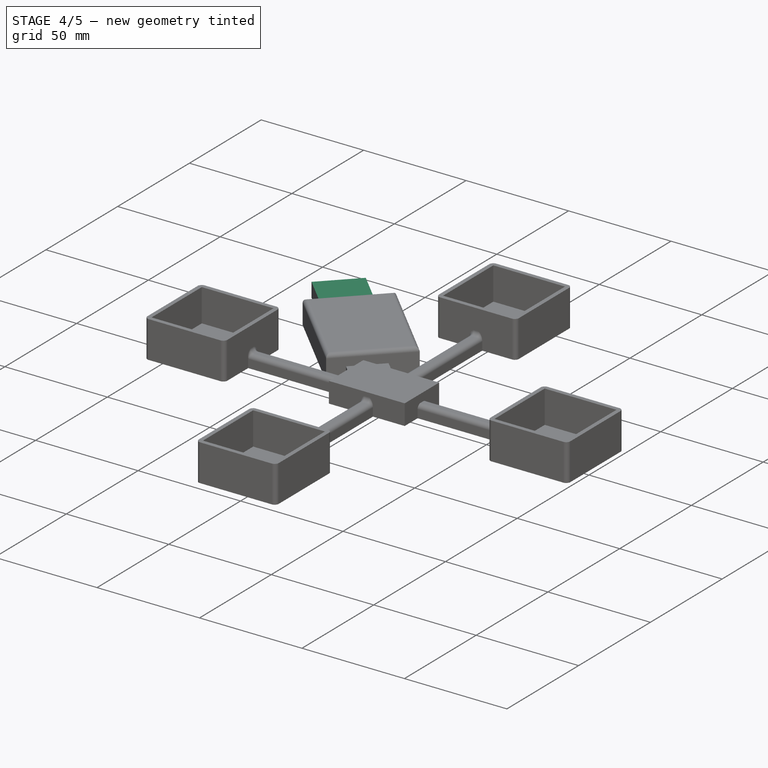
[diagram: stage 4 of 5 — iso view after this stage's code; geometry added in this stage tinted green]
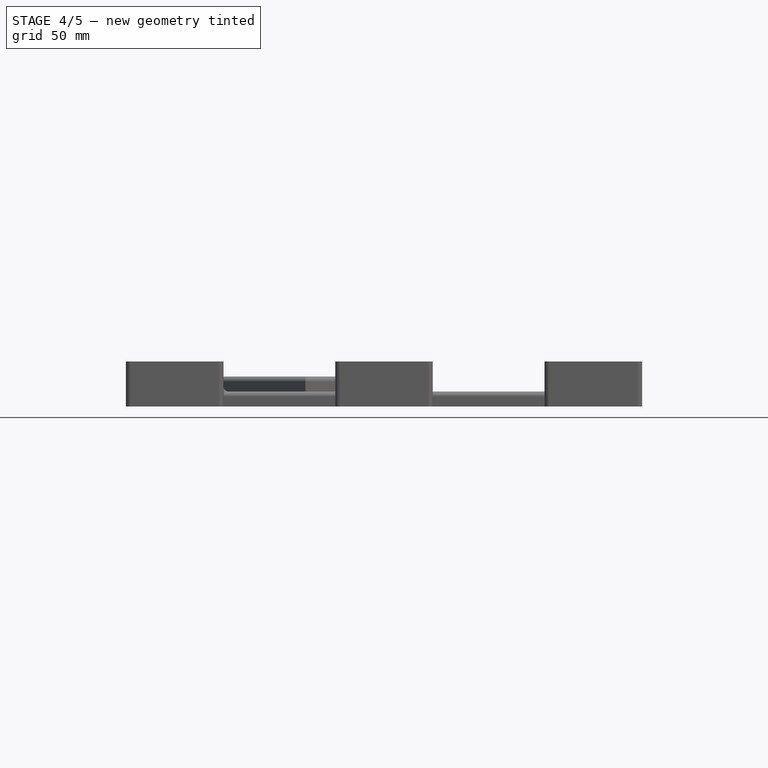
[diagram: stage 4 of 5 — front view after this stage's code; geometry added in this stage tinted green]
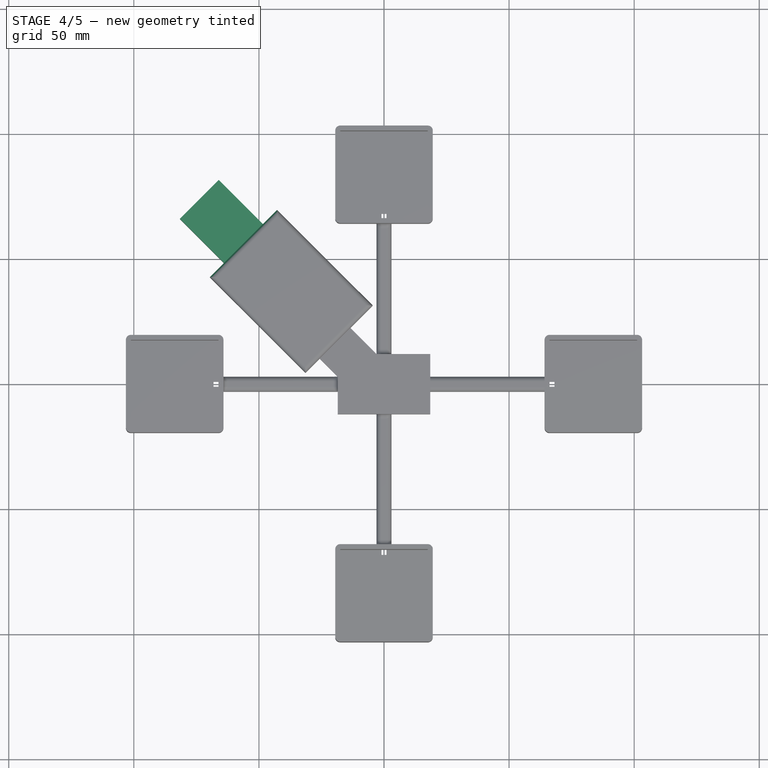
[diagram: stage 4 of 5 — top view after this stage's code; geometry added in this stage tinted green]
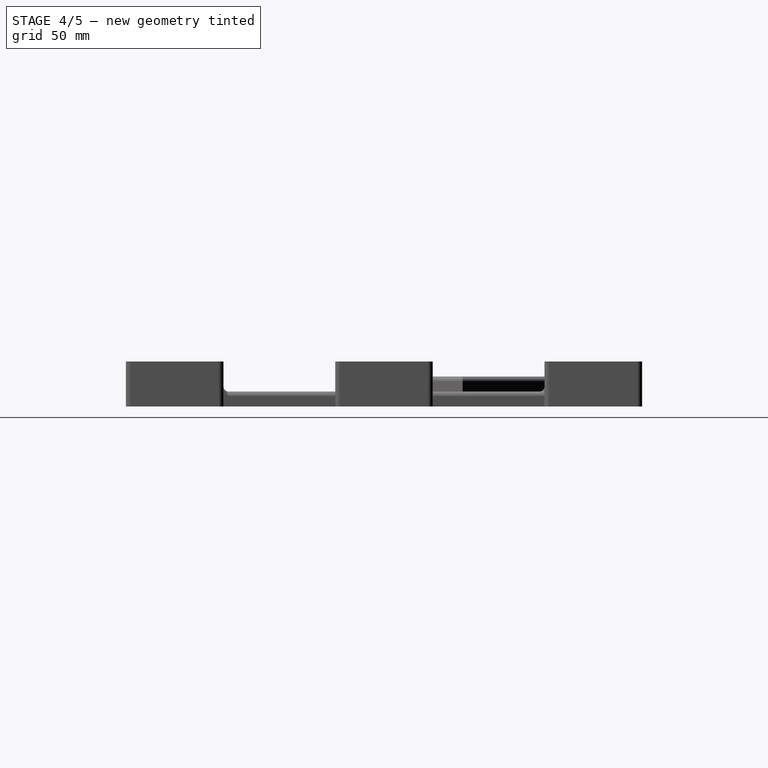
[diagram: stage 4 of 5 — right view after this stage's code; geometry added in this stage tinted green]
FEATURE [Sketcher::SketchObject] Sketch009
  ArcFitTolerance = 1e-06
  AttachmentSupport = -> [Pocket006]
  ExternalGeometry = -> [Pocket006]
  FullyConstrained = true
  MakeInternals = false
  MapMode = 5
  Placement = pos=(0,0,0) rot=(1,0,0;3.14159rad)
  sketch-geometry (4):
    g0: LineSegment StartX=-66.7666 StartY=-42.725 StartZ=0 EndX=-31.4113 EndY=-7.36962 EndZ=0
    g1: LineSegment StartX=-31.4113 StartY=-7.36962 StartZ=0 EndX=-7.36962 EndY=-31.4113 EndZ=0
    g2: LineSegment StartX=-7.36962 StartY=-31.4113 StartZ=0 EndX=-42.725 EndY=-66.7666 EndZ=0
    g3: LineSegment StartX=-42.725 StartY=-66.7666 StartZ=0 EndX=-66.7666 EndY=-42.725 EndZ=0
  constraints (12):
    c: Coincident(g0,g1)
    c: Coincident(g1,g2)
    c: Coincident(g2,g3)
    c: Coincident(g3,g0)
    c: Parallel(g1,g3)
    c: Parallel(g0,g2)
    c: Perpendicular(g0,g3)
    c: Parallel(g1,g-6)
    c: Distance(g3,g3) = 34
    c: Distance(g2,g2) = 50
    c: Distance(g-5,g2) = 2
    c: Distance(g-6,g1) = 2
FEATURE [PartDesign::Pocket] Pocket007
  BaseFeature = -> Pocket006
  Direction = (0,0,1)
  Length = 10
  Length2 = 5
  Profile = -> Sketch009
  ReferenceAxis = -> Sketch009 [N_Axis]
  Refine = true
  Suppressed = false
  Type = 0
FEATURE [Sketcher::SketchObject] Sketch010
  ArcFitTolerance = 1e-06
  AttachmentSupport = -> [Pocket007]
  ExternalGeometry = -> [Pocket007]
  FullyConstrained = true
  MakeInternals = false
  MapMode = 5
  Placement = pos=(0,0,0) rot=(1,0,0;3.14159rad)
  sketch-geometry (5):
    g0: LineSegment StartX=-25.7262 StartY=-13.0547 StartZ=0 EndX=-17 EndY=-4.32843 EndZ=0
    g1: LineSegment StartX=-4.32843 StartY=-10.5 StartZ=0 EndX=-16.3047 EndY=-22.4762 EndZ=0
    g2: LineSegment StartX=-25.7262 StartY=-13.0547 StartZ=0 EndX=-16.3047 EndY=-22.4762 EndZ=0
    g3: LineSegment StartX=-17 StartY=-4.32843 StartZ=0 EndX=-17 EndY=-10.5 EndZ=0
    g4: LineSegment StartX=-17 StartY=-10.5 StartZ=0 EndX=-4.32843 EndY=-10.5 EndZ=0
  constraints (14):
    c: Parallel(g0,g-6)
    c: Distance(g-6,g0) = 2
    c: PointOnObject(g0,g-7)
    c: PointOnObject(g0,g-3)
    c: Parallel(g1,g-5)
    c: Distance(g1,g-5) = 2
    c: PointOnObject(g1,g-7)
    c: PointOnObject(g1,g-4)
    c: Coincident(g2,g0)
    c: Coincident(g2,g1)
    c: Coincident(g3,g0)
    c: Coincident(g3,g-4)
    c: Coincident(g4,g3)
    c: Coincident(g4,g1)
FEATURE [PartDesign::Pocket] Pocket008
  BaseFeature = -> Pocket007
  Direction = (0,0,1)
  Length = 2
  Length2 = 5
  Profile = -> Sketch010
  ReferenceAxis = -> Sketch010 [N_Axis]
  Refine = true
  Suppressed = false
  Type = 0
FEATURE [Sketcher::SketchObject] Sketch011
  ArcFitTolerance = 1e-06
  AttachmentSupport = -> [Pocket008]
  ExternalGeometry = -> [Pocket008]
  FullyConstrained = true
  MakeInternals = false
  MapMode = 5
  Placement = pos=(0,0,0) rot=(1,0,0;3.14159rad)
  sketch-geometry (4):
    g0: LineSegment StartX=-78.7874 StartY=-66.0595 StartZ=0 EndX=-61.1097 EndY=-48.3818 EndZ=0
    g1: LineSegment StartX=-61.1097 StartY=-48.3818 StartZ=0 EndX=-48.3818 EndY=-61.1097 EndZ=0
    g2: LineSegment StartX=-48.3818 StartY=-61.1097 StartZ=0 EndX=-66.0595 EndY=-78.7874 EndZ=0
    g3: LineSegment StartX=-66.0595 StartY=-78.7874 StartZ=0 EndX=-78.7874 EndY=-66.0595 EndZ=0
  constraints (12):
    c: PointOnObject(g0,g-3)
    c: Coincident(g0,g1)
    c: PointOnObject(g1,g-3)
    c: Coincident(g1,g2)
    c: Coincident(g2,g3)
    c: Coincident(g3,g0)
    c: Parallel(g3,g-5)
    c: Parallel(g0,g-4)
    c: Parallel(g2,g-6)
    c: Distance(g3,g-5) = 2
    c: Distance(g-6,g2) = 2
    c: Distance(g-4,g0) = 2
FEATURE [PartDesign::Pocket] Pocket009
  BaseFeature = -> Pocket008
  Direction = (0,0,1)
  Length = 5
  Length2 = 5
  Profile = -> Sketch011
  ReferenceAxis = -> Sketch011 [N_Axis]
  Refine = true
  Suppressed = false
  Type = 0
FEATURE [Sketcher::SketchObject] Sketch012
  ArcFitTolerance = 1e-06
  AttachmentSupport = -> [Pocket009]
  ExternalGeometry = -> [Pocket009]
  FullyConstrained = true
  MakeInternals = false
  MapMode = 5
  Placement = pos=(0,0,12) rot=(0,0,1;0rad)
  sketch-geometry (4):
    g0: LineSegment StartX=-63.9382 StartY=48.3818 StartZ=0 EndX=-81.6158 EndY=66.0595 EndZ=0
    g1: LineSegment StartX=-81.6158 StartY=66.0595 StartZ=0 EndX=-66.0595 EndY=81.6158 EndZ=0
    g2: LineSegment StartX=-66.0595 StartY=81.6158 StartZ=0 EndX=-48.3818 EndY=63.9382 EndZ=0
    g3: LineSegment StartX=-48.3818 StartY=63.9382 StartZ=0 EndX=-63.9382 EndY=48.3818 EndZ=0
  constraints (8):
    c: Coincident(g-3,g0)
    c: Coincident(g0,g-4)
    c: Coincident(g0,g1)
    c: Coincident(g1,g-5)
    c: Coincident(g1,g2)
    c: Coincident(g2,g-5)
    c: Coincident(g2,g3)
    c: Coincident(g3,g0)
FEATURE [PartDesign::Pocket] Pocket010
  BaseFeature = -> Pocket009
  Direction = (0,0,-1)
  Length = 5
  Length2 = 5
  Profile = -> Sketch012
  ReferenceAxis = -> Sketch012 [N_Axis]
  Refine = true
  Suppressed = false
  Type = 0
FEATURE [Sketcher::SketchObject] Sketch013
  ArcFitTolerance = 1e-06
  AttachmentSupport = -> [Pocket010]
  ExternalGeometry = -> [Pocket010]
  FullyConstrained = true
  MakeInternals = false
  MapMode = 5
  Placement = pos=(0,0,0) rot=(1,0,0;3.14159rad)
  sketch-geometry (6):
    g0: LineSegment StartX=-77.0196 StartY=-70.6557 StartZ=0 EndX=-75.6054 EndY=-69.2415 EndZ=0
    g1: LineSegment StartX=-75.6054 StartY=-69.2415 StartZ=0 EndX=-69.2415 EndY=-75.6054 EndZ=0
    g2: LineSegment StartX=-69.2415 StartY=-75.6054 StartZ=0 EndX=-70.6557 EndY=-77.0196 EndZ=0
    g3: LineSegment StartX=-70.6557 StartY=-77.0196 StartZ=0 EndX=-77.0196 EndY=-70.6557 EndZ=0
    g4: LineSegment [constr] StartX=-78.7874 StartY=-66.0595 StartZ=0 EndX=-75.6054 EndY=-69.2415 EndZ=0
    g5: LineSegment [constr] StartX=-69.2415 StartY=-75.6054 StartZ=0 EndX=-66.0595 EndY=-78.7874 EndZ=0
  constraints (16):
    c: PointOnObject(g0,g-3)
    c: PointOnObject(g0,g-4)
    c: Coincident(g0,g1)
    c: PointOnObject(g1,g-4)
    c: Coincident(g1,g2)
    c: PointOnObject(g2,g-3)
    c: Coincident(g2,g3)
    c: Coincident(g3,g0)
    c: Distance(g1,g1) = 9
    c: Equal(g3,g1)
    c: Perpendicular(g2,g3)
    c: Coincident(g4,g-4)
    c: Coincident(g4,g0)
    c: Coincident(g5,g1)
    c: Coincident(g5,g-4)
    c: Equal(g4,g5)
FEATURE [PartDesign::Pocket] Pocket011
  BaseFeature = -> Pocket010
  Direction = (0,0,1)
  Length = 3
  Length2 = 5
  Profile = -> Sketch013
  ReferenceAxis = -> Sketch013 [N_Axis]
  Refine = true
  Suppressed = false
  Type = 0
FEATURE [PartDesign::Fillet] Fillet008
  Base = -> Pocket011 [Face100]
  BaseFeature = -> Pocket011
  Radius = 2
  Refine = true
  SupportTransform = false
  Suppressed = false
  UseAllEdges = false
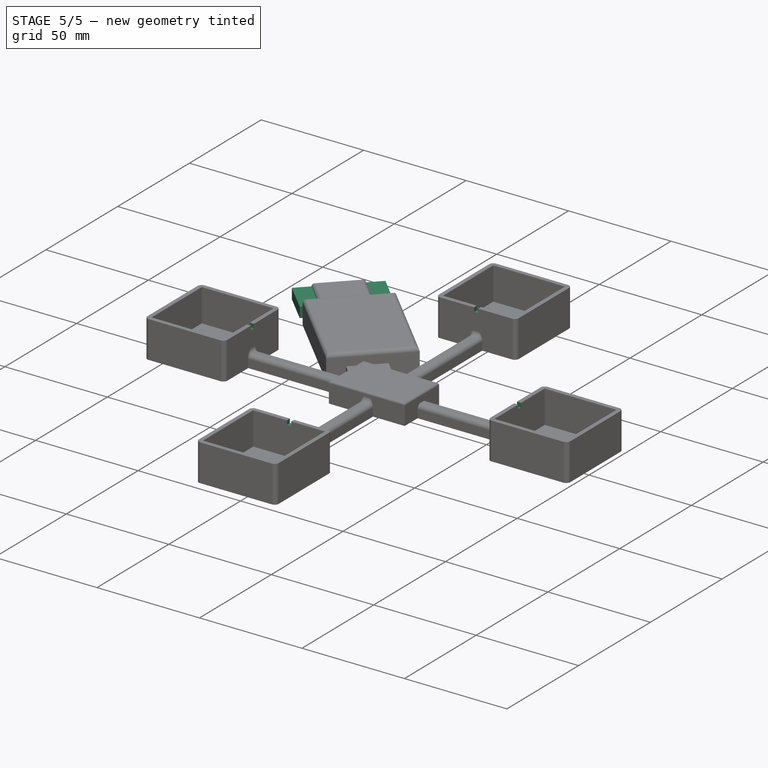
[diagram: stage 5 of 5 — iso view after this stage's code; geometry added in this stage tinted green]
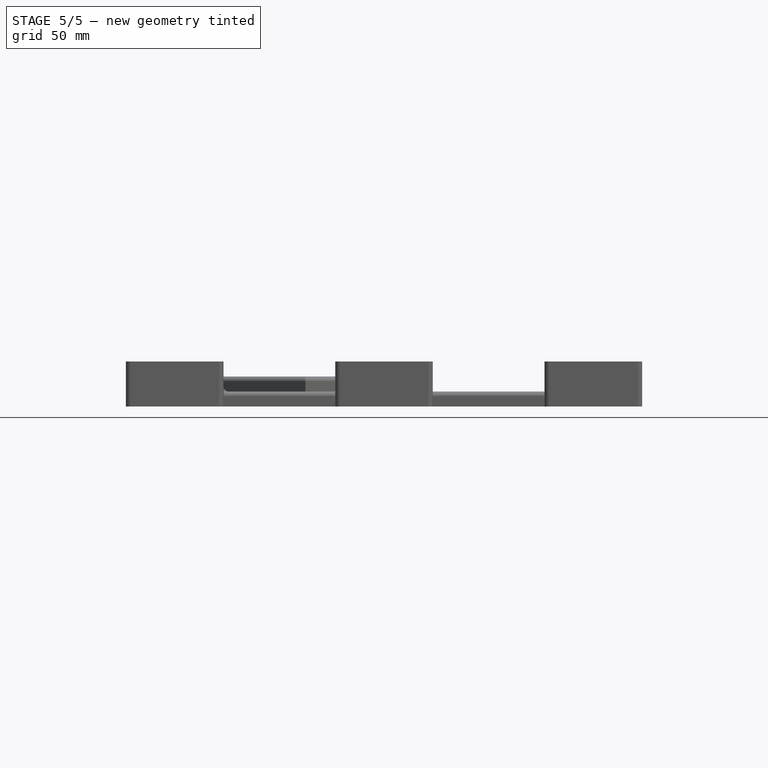
[diagram: stage 5 of 5 — front view after this stage's code; geometry added in this stage tinted green]
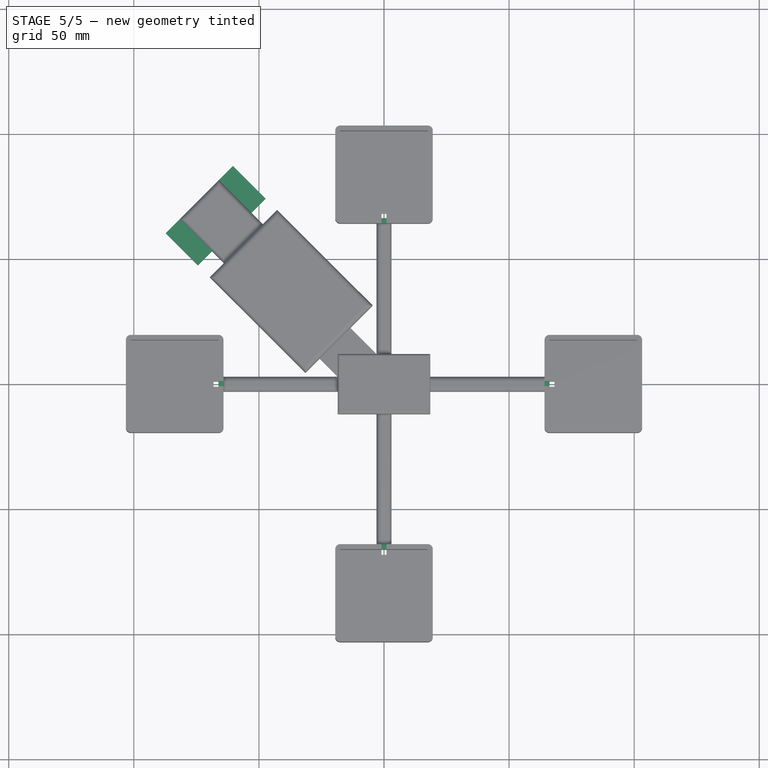
[diagram: stage 5 of 5 — top view after this stage's code; geometry added in this stage tinted green]
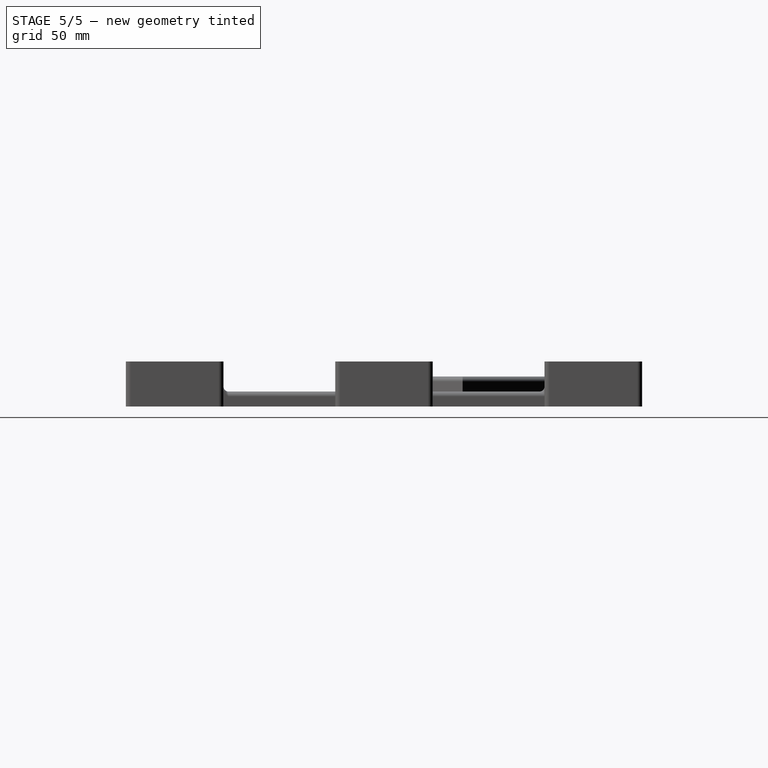
[diagram: stage 5 of 5 — right view after this stage's code; geometry added in this stage tinted green]
FEATURE [PartDesign::Fillet] Fillet009
  Base = -> Fillet008 [Face88]
  BaseFeature = -> Fillet008
  Radius = 2
  Refine = true
  SupportTransform = false
  Suppressed = false
  UseAllEdges = false
FEATURE [PartDesign::Fillet] Fillet010
  Base = -> Fillet009 [Face123]
  BaseFeature = -> Fillet009
  Radius = 1
  Refine = true
  SupportTransform = false
  Suppressed = false
  UseAllEdges = false
FEATURE [Sketcher::SketchObject] Sketch014
  ArcFitTolerance = 1e-06
  AttachmentSupport = -> [Fillet010]
  ExternalGeometry = -> [Fillet010]
  FullyConstrained = false
  MakeInternals = false
  MapMode = 5
  Placement = pos=(0,0,18) rot=(0,0,1;0rad)
  sketch-geometry (16):
    g0: LineSegment StartX=-1 StartY=66.1734 StartZ=0 EndX=-1 EndY=64.1734 EndZ=0
    g1: LineSegment StartX=-1 StartY=64.1734 StartZ=0 EndX=1 EndY=64.1734 EndZ=0
    g2: LineSegment StartX=1 StartY=64.1734 StartZ=0 EndX=1 EndY=66.1734 EndZ=0
    g3: LineSegment StartX=1 StartY=66.1734 StartZ=0 EndX=-1 EndY=66.1734 EndZ=0
    g4: LineSegment StartX=-66.1734 StartY=1 StartZ=0 EndX=-66.1734 EndY=-1 EndZ=0
    g5: LineSegment StartX=-66.1734 StartY=-1 StartZ=0 EndX=-64.1734 EndY=-1 EndZ=0
    g6: LineSegment StartX=-64.1734 StartY=-1 StartZ=0 EndX=-64.1734 EndY=1 EndZ=0
    g7: LineSegment StartX=-64.1734 StartY=1 StartZ=0 EndX=-66.1734 EndY=1 EndZ=0
    g8: LineSegment StartX=64.1734 StartY=1 StartZ=0 EndX=64.1734 EndY=-1 EndZ=0
    g9: LineSegment StartX=64.1734 StartY=-1 StartZ=0 EndX=66.1734 EndY=-1 EndZ=0
    g10: LineSegment StartX=66.1734 StartY=-1 StartZ=0 EndX=66.1734 EndY=1 EndZ=0
    g11: LineSegment StartX=66.1734 StartY=1 StartZ=0 EndX=64.1734 EndY=1 EndZ=0
    g12: LineSegment StartX=-1 StartY=-64.1734 StartZ=0 EndX=-1 EndY=-66.1734 EndZ=0
    g13: LineSegment StartX=-1 StartY=-66.1734 StartZ=0 EndX=1 EndY=-66.1734 EndZ=0
    g14: LineSegment StartX=1 StartY=-66.1734 StartZ=0 EndX=1 EndY=-64.1734 EndZ=0
    g15: LineSegment StartX=1 StartY=-64.1734 StartZ=0 EndX=-1 EndY=-64.1734 EndZ=0
  constraints (42):
    c: Coincident(g0,g1)
    c: Coincident(g1,g2)
    c: Coincident(g2,g3)
    c: Coincident(g3,g0)
    c: Vertical(g0)
    c: Vertical(g2)
    c: Horizontal(g1)
    c: Horizontal(g3)
    c: PointOnObject(g1,g-3)
    c: PointOnObject(g2,g-5)
    c: Coincident(g0,g-6)
    c: Coincident(g4,g5)
    c: Coincident(g5,g6)
    c: Coincident(g6,g7)
    c: Coincident(g7,g4)
    c: Vertical(g4)
    c: Vertical(g6)
    c: Horizontal(g5)
    c: Horizontal(g7)
    c: PointOnObject(g6,g-8)
    c: PointOnObject(g4,g-7)
    c: PointOnObject(g4,g-10)
    c: Coincident(g8,g9)
    c: Coincident(g9,g10)
    c: Coincident(g10,g11)
    c: Coincident(g11,g8)
    c: Vertical(g10)
    c: Horizontal(g9)
    c: Horizontal(g11)
    c: Coincident(g8,g-14)
    c: Coincident(g8,g-13)
    c: PointOnObject(g10,g-11)
    c: Coincident(g12,g13)
    c: Coincident(g13,g14)
    c: Coincident(g14,g15)
    c: Coincident(g15,g12)
    c: Vertical(g12)
    c: Vertical(g14)
    c: Horizontal(g15)
    c: Coincident(g12,g-18)
    c: Coincident(g13,g-17)
    c: PointOnObject(g14,g-16)
FEATURE [PartDesign::Pocket] Pocket012
  BaseFeature = -> Fillet010
  Direction = (0,0,-1)
  Length = 2
  Length2 = 5
  Profile = -> Sketch014
  ReferenceAxis = -> Sketch014 [N_Axis]
  Refine = true
  Suppressed = false
  Type = 0
FEATURE [Sketcher::SketchObject] Sketch015
  ArcFitTolerance = 1e-06
  AttachmentSupport = -> [Pocket012]
  ExternalGeometry = -> [Pocket012]
  FullyConstrained = false
  MakeInternals = false
  MapMode = 5
  Placement = pos=(-7.77817,-7.77817,0) rot=(0.862856,-0.357407,-0.357407;1.71777rad)
  sketch-geometry (4):
    g0: LineSegment StartX=-104.422 StartY=5 StartZ=0 EndX=-104.422 EndY=0 EndZ=0
    g1: LineSegment StartX=-104.422 StartY=0 StartZ=0 EndX=-86.2431 EndY=0 EndZ=0
    g2: LineSegment StartX=-86.2431 StartY=0 StartZ=0 EndX=-86.2431 EndY=5 EndZ=0
    g3: LineSegment StartX=-86.2431 StartY=5 StartZ=0 EndX=-104.422 EndY=5 EndZ=0
  constraints (10):
    c: Coincident(g0,g1)
    c: Coincident(g1,g2)
    c: Coincident(g2,g3)
    c: Coincident(g3,g0)
    c: Vertical(g0)
    c: Vertical(g2)
    c: Horizontal(g1)
    c: Horizontal(g3)
    c: Coincident(g0,g-4)
    c: PointOnObject(g1,g-1)
FEATURE [PartDesign::Pad] Pad001
  BaseFeature = -> Pocket012
  Direction = (-0.707107,-0.707107,-1e-16)
  Length = 8
  Length2 = 10
  Profile = -> Sketch015
  ReferenceAxis = -> Sketch015 [N_Axis]
  Refine = true
  Suppressed = false
  Type = 0
FEATURE [Sketcher::SketchObject] Sketch016
  ArcFitTolerance = 1e-06
  AttachmentSupport = -> [Pad001]
  ExternalGeometry = -> [Pad001]
  FullyConstrained = false
  MakeInternals = false
  MapMode = 5
  Placement = pos=(7.77817,7.77817,0) rot=(0.281085,0.678598,0.678598;2.59356rad)
  sketch-geometry (4):
    g0: LineSegment StartX=104.422 StartY=5 StartZ=0 EndX=85.9728 EndY=5 EndZ=0
    g1: LineSegment StartX=85.9728 StartY=5 StartZ=0 EndX=85.9728 EndY=0 EndZ=0
    g2: LineSegment StartX=85.9728 StartY=0 StartZ=0 EndX=104.422 EndY=0 EndZ=0
    g3: LineSegment StartX=104.422 StartY=0 StartZ=0 EndX=104.422 EndY=5 EndZ=0
  constraints (10):
    c: Coincident(g0,g1)
    c: Coincident(g1,g2)
    c: Coincident(g2,g3)
    c: Coincident(g3,g0)
    c: Horizontal(g0)
    c: Horizontal(g2)
    c: Vertical(g1)
    c: Vertical(g3)
    c: Coincident(g0,g-4)
    c: PointOnObject(g1,g-5)
FEATURE [PartDesign::Pad] Pad002
  BaseFeature = -> Pad001
  Direction = (0.707107,0.707107,1e-16)
  Length = 8
  Length2 = 10
  Profile = -> Sketch016
  ReferenceAxis = -> Sketch016 [N_Axis]
  Refine = true
  Suppressed = false
  Type = 0
FEATURE [PartDesign::Body] Body
  AllowCompound = false
  Group = -> [Sketch,Pad,Sketch001,Pocket,Fillet,Fillet001,Fillet002,Sketch002,Pocket001,Fillet003,Fillet004,Fillet005,Fillet006,Fillet007,Sketch003,Sketch004,Pocket002,Sketch005,Pocket003,Sketch006,Pocket004,Sketch007,Pocket005,Sketch008,Pocket006,Sketch009,Pocket007,Sketch010,Pocket008,Sketch011,Pocket009,Sketch012,Pocket010,Sketch013,Pocket011,Fillet008,Fillet009,Fillet010,Sketch014,Pocket012,Sketch015,+3 more]
  Origin = -> Origin
  Tip = -> Pad002
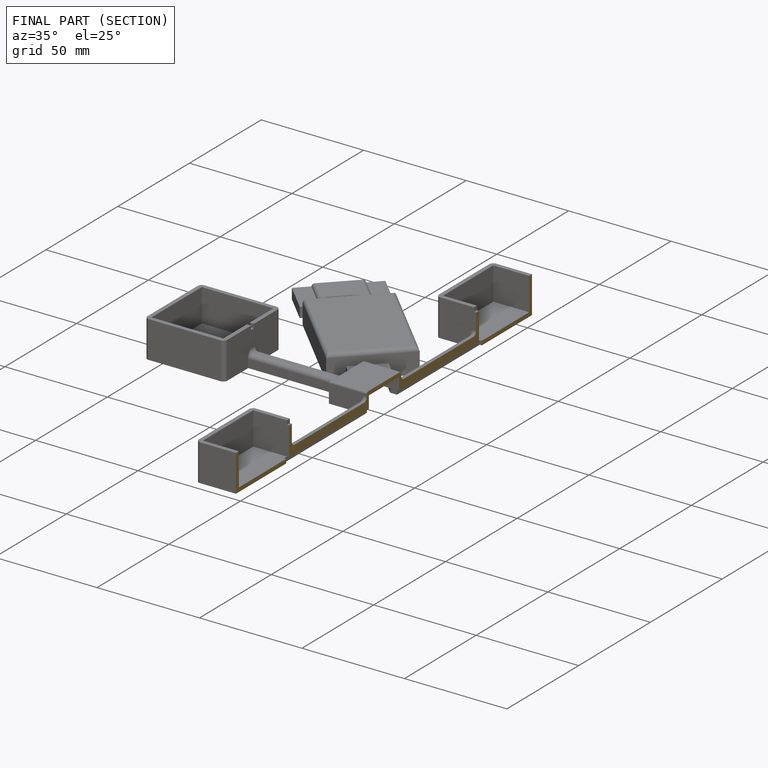
[diagram: finished part — half-section view (interior)]
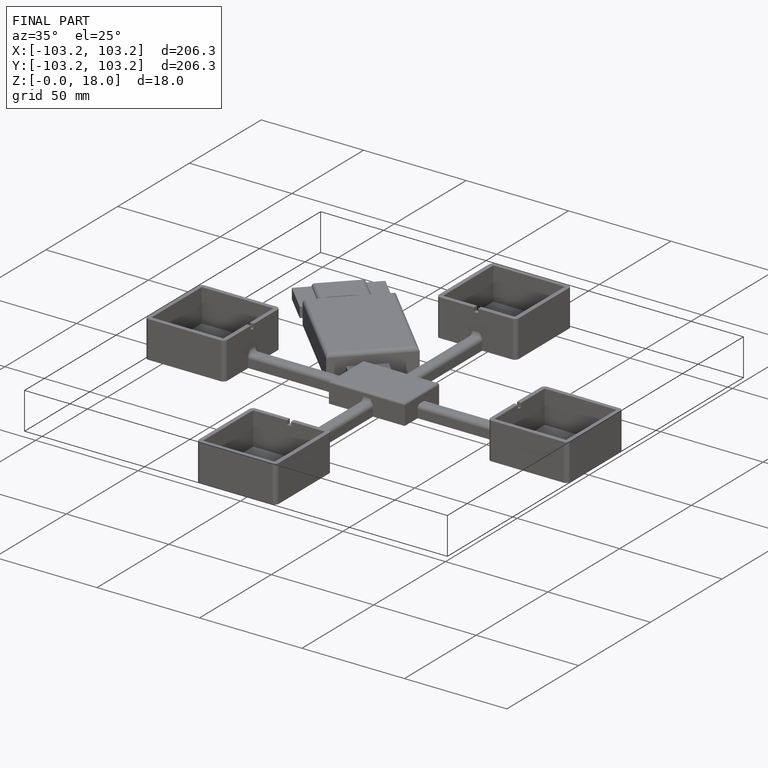
[diagram: finished part — iso view with bounding-box wireframe]
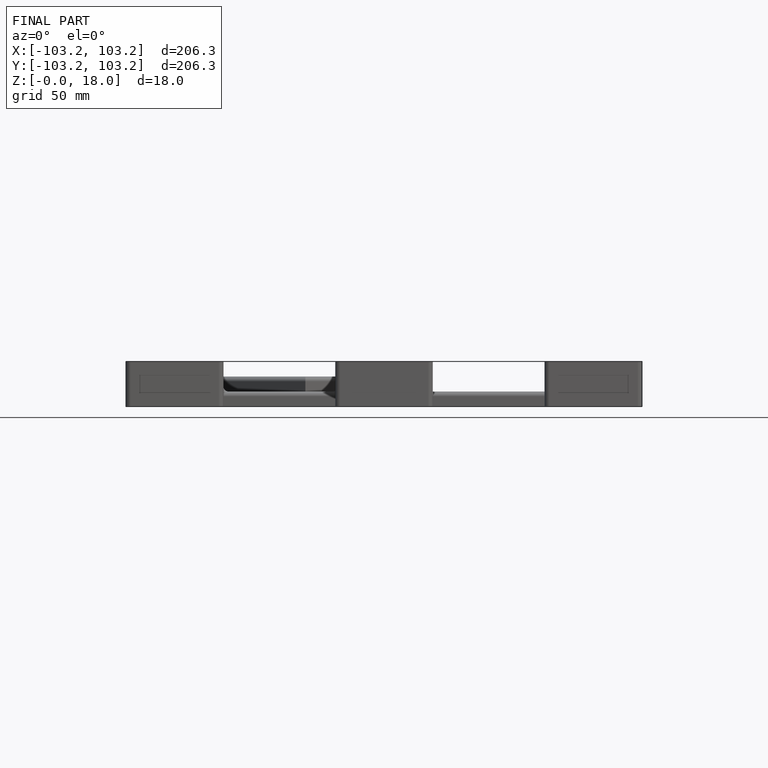
[diagram: finished part — front view with bounding-box wireframe]
